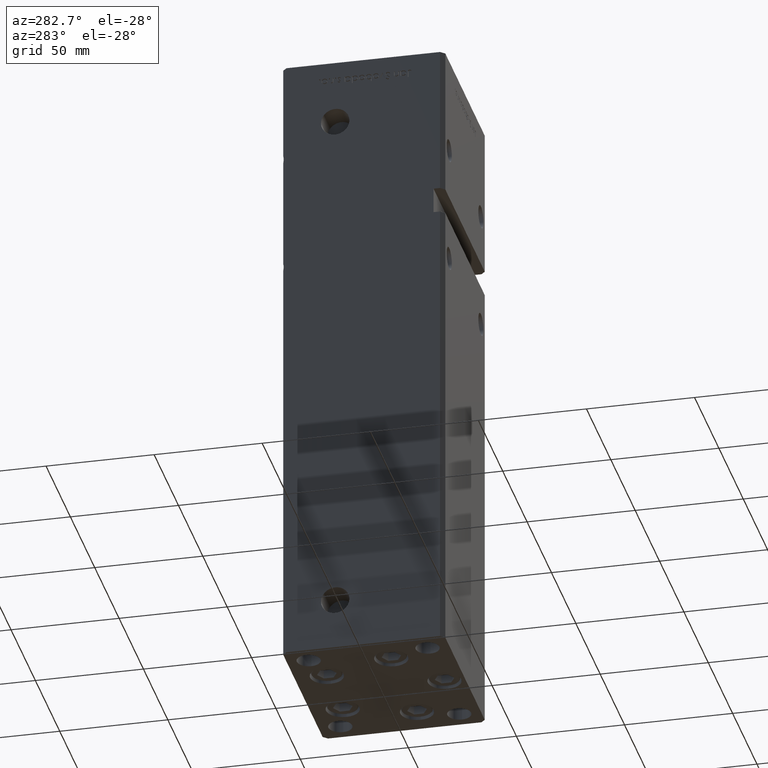
[diagram: clean part render]
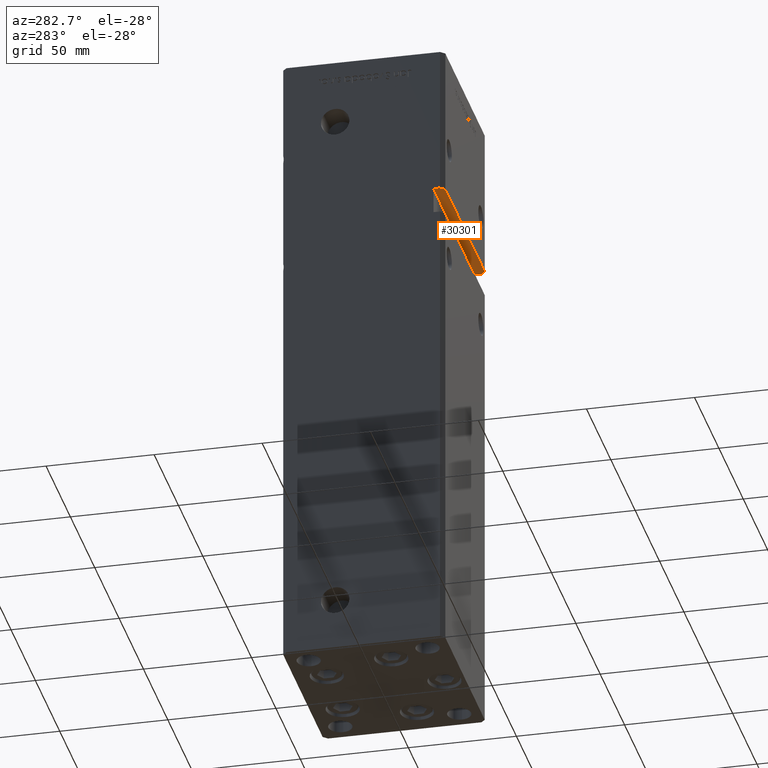
[diagram: same view with one face highlighted and labeled with its STEP entity id]
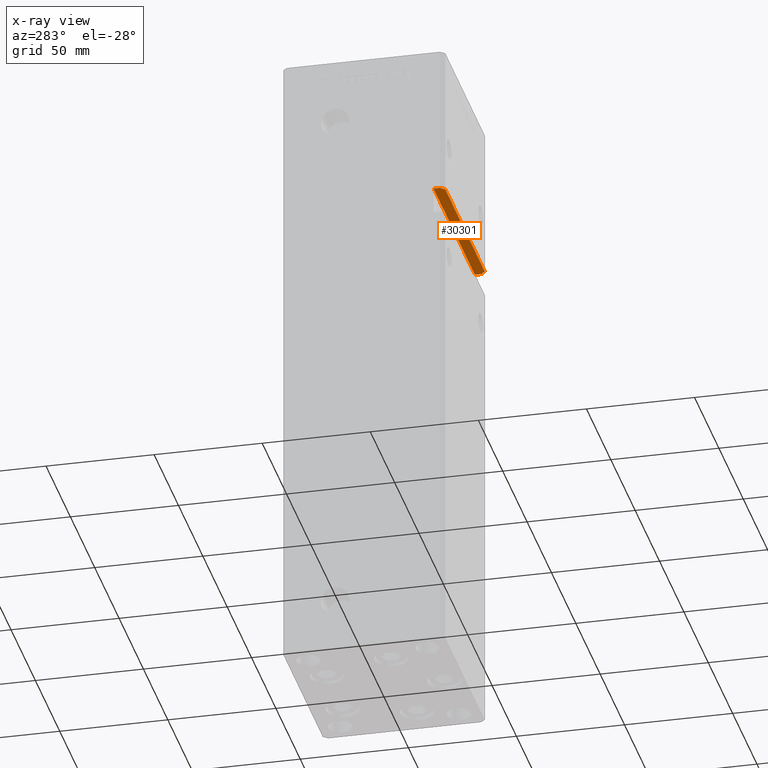
[diagram: x-ray of the same camera — body ghosted, the highlighted face saturated]
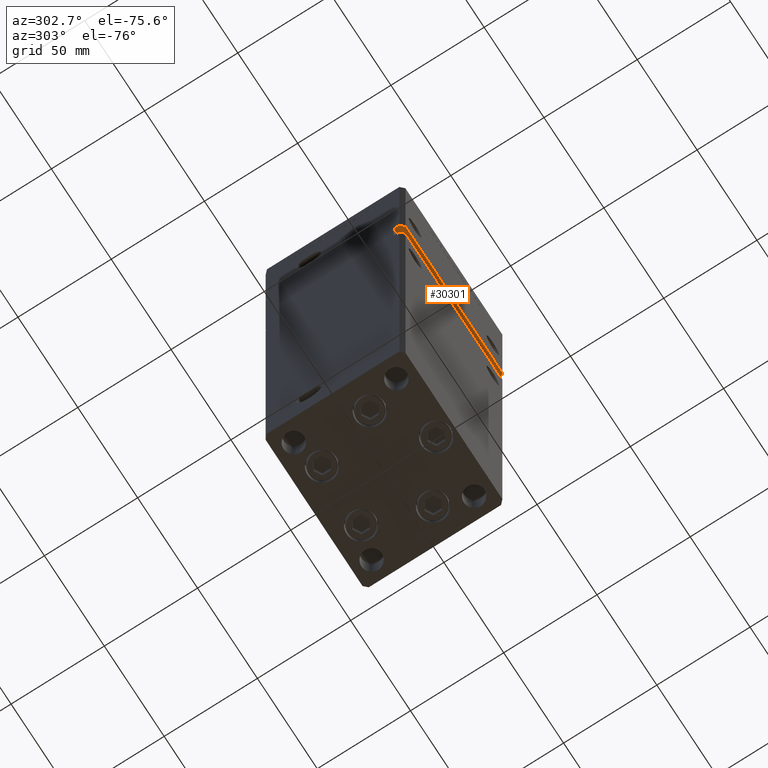
[diagram: same view with one face highlighted and labeled with its STEP entity id]
A machine part, auxiliary view. The second image highlights one B-rep face of the part: STEP entity #30301.
The next image is the same camera in x-ray: the body ghosted, the highlighted face saturated — about 0% of this face is hidden behind the body in this view.
A second angle (auxiliary view) of the same face is appended — the face is thin or edge-on in the first view.
In plain terms, the highlighted planar face has unit normal (0, 0, 1).
Its self-contained STEP definition (entity closure, byte-faithful):
#1902 = VECTOR ( 'NONE', #41936, 1000.000000000000114 ) ;
#3545 = ORIENTED_EDGE ( 'NONE', *, *, #39914, .F. ) ;
#3801 = VERTEX_POINT ( 'NONE', #6512 ) ;
#3951 = CARTESIAN_POINT ( 'NONE',  ( -40.49999999999998579, -37.50000000000000711, 214.0000000000000284 ) ) ;
#4048 = CARTESIAN_POINT ( 'NONE',  ( 42.49999999999998579, -32.50000000000000711, 214.0000000000000284 ) ) ;
#4419 = ORIENTED_EDGE ( 'NONE', *, *, #10052, .T. ) ;
#5322 = CARTESIAN_POINT ( 'NONE',  ( -42.49999999999998579, -35.50000000000000711, 214.0000000000000284 ) ) ;
#6354 = CARTESIAN_POINT ( 'NONE',  ( 42.49999999999998579, -35.50000000000000711, 214.0000000000000284 ) ) ;
#6512 = CARTESIAN_POINT ( 'NONE',  ( 40.49999999999997868, -37.50000000000000711, 214.0000000000000284 ) ) ;
#7371 = CARTESIAN_POINT ( 'NONE',  ( -42.49999999999998579, -32.50000000000000711, 214.0000000000000284 ) ) ;
#9088 = EDGE_CURVE ( 'NONE', #23981, #3801, #9656, .T. ) ;
#9656 = LINE ( 'NONE', #45975, #1902 ) ;
#10052 = EDGE_CURVE ( 'NONE', #44804, #23981, #32319, .T. ) ;
#11939 = PLANE ( 'NONE',  #40274 ) ;
#14665 = EDGE_CURVE ( 'NONE', #44804, #49174, #23941, .T. ) ;
#15919 = ORIENTED_EDGE ( 'NONE', *, *, #14665, .F. ) ;
#17442 = LINE ( 'NONE', #5322, #26267 ) ;
#18585 = CARTESIAN_POINT ( 'NONE',  ( -42.49999999999998579, -35.50000000000001421, 214.0000000000000284 ) ) ;
#19617 = ORIENTED_EDGE ( 'NONE', *, *, #9088, .T. ) ;
#20427 = VECTOR ( 'NONE', #40331, 1000.000000000000000 ) ;
#20455 = DIRECTION ( 'NONE',  ( -0.000000000000000000, -1.000000000000000000, -0.000000000000000000 ) ) ;
#22843 = CARTESIAN_POINT ( 'NONE',  ( -42.49999999999998579, -37.50000000000000711, 214.0000000000000284 ) ) ;
#23941 = LINE ( 'NONE', #48659, #20427 ) ;
#23981 = VERTEX_POINT ( 'NONE', #6354 ) ;
#26267 = VECTOR ( 'NONE', #33853, 1000.000000000000114 ) ;
#27631 = CARTESIAN_POINT ( 'NONE',  ( 42.49999999999998579, -32.50000000000000711, 214.0000000000000284 ) ) ;
#30301 = ADVANCED_FACE ( 'NONE', ( #32401 ), #11939, .F. ) ;
#32187 = CARTESIAN_POINT ( 'NONE',  ( -42.49999999999998579, -32.50000000000000711, 214.0000000000000284 ) ) ;
#32319 = LINE ( 'NONE', #4048, #51573 ) ;
#32401 = FACE_OUTER_BOUND ( 'NONE', #48497, .T. ) ;
#33853 = DIRECTION ( 'NONE',  ( 0.7071067811865474617, -0.7071067811865474617, 0.000000000000000000 ) ) ;
#34694 = LINE ( 'NONE', #22843, #43333 ) ;
#34702 = EDGE_CURVE ( 'NONE', #3801, #51436, #34694, .T. ) ;
#35815 = ORIENTED_EDGE ( 'NONE', *, *, #34702, .T. ) ;
#36603 = VERTEX_POINT ( 'NONE', #18585 ) ;
#38524 = CARTESIAN_POINT ( 'NONE',  ( -42.49999999999998579, -32.50000000000000711, 214.0000000000000284 ) ) ;
#39914 = EDGE_CURVE ( 'NONE', #49174, #36603, #44261, .T. ) ;
#40274 = AXIS2_PLACEMENT_3D ( 'NONE', #7371, #44209, #53056 ) ;
#40331 = DIRECTION ( 'NONE',  ( -1.000000000000000000, -0.000000000000000000, -0.000000000000000000 ) ) ;
#40492 = DIRECTION ( 'NONE',  ( -0.000000000000000000, -1.000000000000000000, -0.000000000000000000 ) ) ;
#41735 = EDGE_CURVE ( 'NONE', #36603, #51436, #17442, .T. ) ;
#41936 = DIRECTION ( 'NONE',  ( -0.7071067811865474617, -0.7071067811865474617, 0.000000000000000000 ) ) ;
#43333 = VECTOR ( 'NONE', #43811, 1000.000000000000000 ) ;
#43374 = VECTOR ( 'NONE', #40492, 1000.000000000000000 ) ;
#43811 = DIRECTION ( 'NONE',  ( -1.000000000000000000, -0.000000000000000000, -0.000000000000000000 ) ) ;
#44209 = DIRECTION ( 'NONE',  ( 0.000000000000000000, 0.000000000000000000, 1.000000000000000000 ) ) ;
#44261 = LINE ( 'NONE', #32187, #43374 ) ;
#44804 = VERTEX_POINT ( 'NONE', #27631 ) ;
#45975 = CARTESIAN_POINT ( 'NONE',  ( 42.49999999999998579, -35.50000000000000711, 214.0000000000000284 ) ) ;
#48345 = ORIENTED_EDGE ( 'NONE', *, *, #41735, .F. ) ;
#48497 = EDGE_LOOP ( 'NONE', ( #3545, #15919, #4419, #19617, #35815, #48345 ) ) ;
#48659 = CARTESIAN_POINT ( 'NONE',  ( -42.49999999999998579, -32.50000000000000711, 214.0000000000000284 ) ) ;
#49174 = VERTEX_POINT ( 'NONE', #38524 ) ;
#51436 = VERTEX_POINT ( 'NONE', #3951 ) ;
#51573 = VECTOR ( 'NONE', #20455, 1000.000000000000000 ) ;
#53056 = DIRECTION ( 'NONE',  ( 1.000000000000000000, 0.000000000000000000, -0.000000000000000000 ) ) ;